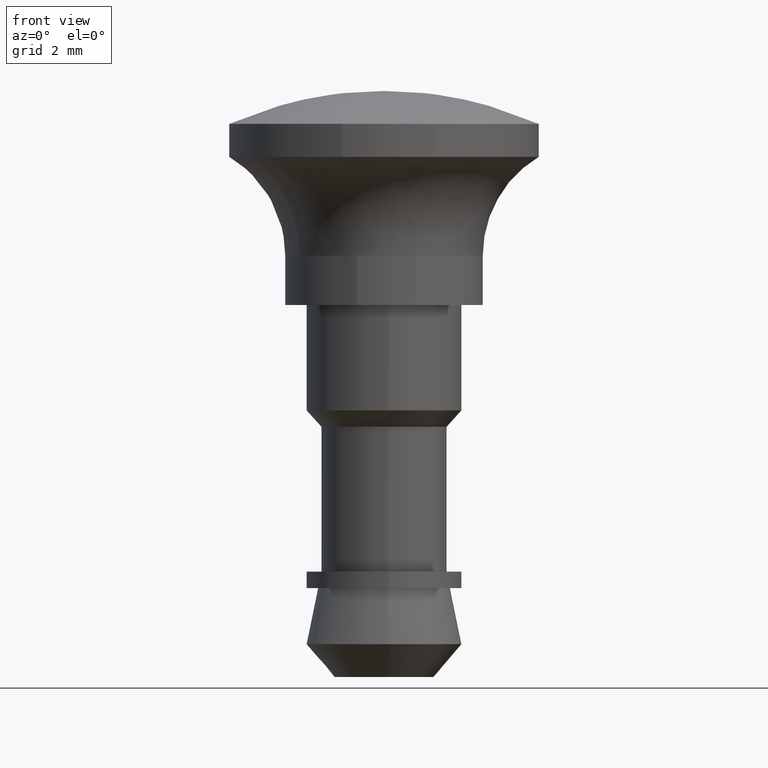
[diagram: clean part render]
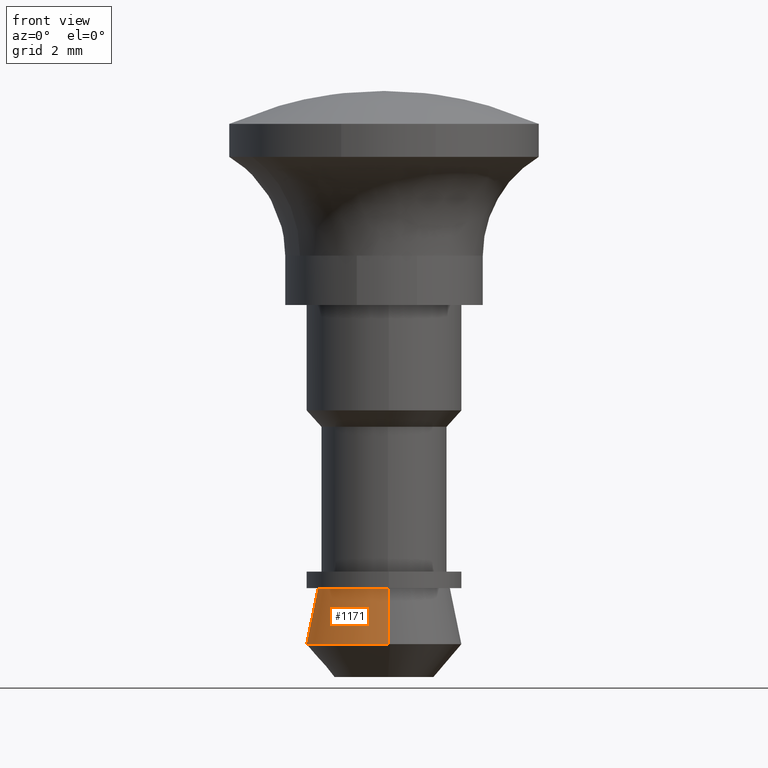
[diagram: same view with one face highlighted and labeled with its STEP entity id]
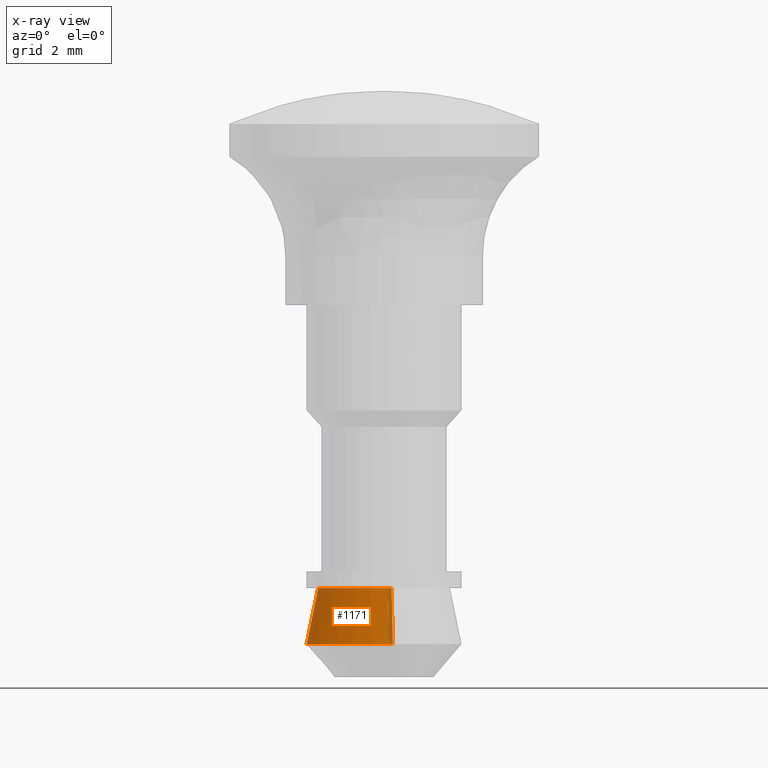
[diagram: x-ray of the same camera — body ghosted, the highlighted face saturated]
A machine part, front view. The second image highlights one B-rep face of the part: STEP entity #1171.
The next image is the same camera in x-ray: the body ghosted, the highlighted face saturated — about 5% of this face is hidden behind the body in this view.
In plain terms, the highlighted face is a freeform B-spline surface patch.
Its self-contained STEP definition (entity closure, byte-faithful):
#974=CARTESIAN_POINT('',(0.268136562160147,2.334652604572247,-10.300000000003150));
#975=VERTEX_POINT('',#974);
#991=CARTESIAN_POINT('',(0.228201329499123,1.986938386869895,-8.600000000002741));
#992=VERTEX_POINT('',#991);
#993=CARTESIAN_POINT('',(0.228201329499123,1.986938386869895,-8.600000000002741));
#994=CARTESIAN_POINT('',(0.268136562160147,2.334652604572247,-10.300000000003150));
#995=QUASI_UNIFORM_CURVE('',1,(#993,#994),.UNSPECIFIED.,.F.,.U.);
#996=EDGE_CURVE('',#992,#975,#995,.T.);
#1013=CARTESIAN_POINT('',(0.122097079078976,-1.996269596843437,-8.600000000001245));
#1014=VERTEX_POINT('',#1013);
#1028=CARTESIAN_POINT('',(0.143463870687620,-2.345616745525311,-10.299999792363820));
#1029=VERTEX_POINT('',#1028);
#1030=CARTESIAN_POINT('',(0.122097079078976,-1.996269596843437,-8.600000000001245));
#1031=CARTESIAN_POINT('',(0.143463870687620,-2.345616745525311,-10.299999792363820));
#1032=QUASI_UNIFORM_CURVE('',1,(#1030,#1031),.UNSPECIFIED.,.F.,.U.);
#1033=EDGE_CURVE('',#1014,#1029,#1032,.T.);
#1066=CARTESIAN_POINT('',(0.121562904348783,-1.987535917357521,-8.557499999999886));
#1067=CARTESIAN_POINT('',(-1.865973013008738,-2.109098821706304,-8.557499999999886));
#1068=CARTESIAN_POINT('',(-1.987535917357521,-0.121562904348783,-8.557499999999886));
#1069=CARTESIAN_POINT('',(-2.109098821706304,1.865973013008738,-8.557499999999886));
#1070=CARTESIAN_POINT('',(-0.121562904348783,1.987535917357521,-8.557499999999886));
#1071=CARTESIAN_POINT('',(0.053228538034748,1.998226619953581,-8.557499999999886));
#1072=CARTESIAN_POINT('',(0.227202948664240,1.978245531428845,-8.557499999999886));
#1073=CARTESIAN_POINT('',(0.144011596995867,-2.354568797764734,-10.343562500000010));
#1074=CARTESIAN_POINT('',(-2.210557200768867,-2.498580394760601,-10.343562500000006));
#1075=CARTESIAN_POINT('',(-2.354568797764734,-0.144011596995867,-10.343562500000010));
#1076=CARTESIAN_POINT('',(-2.498580394760601,2.210557200768867,-10.343562500000006));
#1077=CARTESIAN_POINT('',(-0.144011596995867,2.354568797764734,-10.343562500000010));
#1078=CARTESIAN_POINT('',(0.063058108139188,2.367233723484583,-10.343562500000006));
#1079=CARTESIAN_POINT('',(0.269159902476737,2.343562781402555,-10.343562500000006));
#1087=(BOUNDED_SURFACE()B_SPLINE_SURFACE(2,1,((#1066,#1073),(#1067,#1074),(#1068,#1075),(#1069,#1076),(#1070,#1077),(#1071,#1078),(#1072,#1079)),.UNSPECIFIED.,.F.,.F.,.U.)B_SPLINE_SURFACE_WITH_KNOTS((3,2,2,3),(2,2),(0.0,3.908467397857229,7.816934795714458,8.285950883457325),(0.0,1.0),.UNSPECIFIED.)GEOMETRIC_REPRESENTATION_ITEM()RATIONAL_B_SPLINE_SURFACE(((1.0,1.0),(0.707106781186548,0.707106781186548),(1.0,1.0),(0.707106781186548,0.707106781186548),(1.0,1.0),(0.964852813742386,0.964852813742386),(0.938140952186599,0.938140952186599)))REPRESENTATION_ITEM('')SURFACE());
#1088=CARTESIAN_POINT('',(-0.184378462736451,2.342755330924159,-10.300000511055130));
#1089=VERTEX_POINT('',#1088);
#1090=CARTESIAN_POINT('',(-0.184378462736451,2.342755330924160,-10.300000511055126));
#1091=CARTESIAN_POINT('',(-0.092331371575623,2.350000000000000,-10.300000000000002));
#1092=CARTESIAN_POINT('',(0.0,2.350000000000000,-10.300000000000001));
#1093=CARTESIAN_POINT('',(0.134507502329861,2.350000000000001,-10.299999999999999));
#1094=CARTESIAN_POINT('',(0.268136562160147,2.334652604572246,-10.300000000003145));
#1102=(BOUNDED_CURVE()B_SPLINE_CURVE(2,(#1090,#1091,#1092,#1093,#1094),.UNSPECIFIED.,.F.,.U.)B_SPLINE_CURVE_WITH_KNOTS((3,2,3),(0.236331355971056,0.250000000000000,0.269767755879541),.UNSPECIFIED.)CURVE()GEOMETRIC_REPRESENTATION_ITEM()RATIONAL_B_SPLINE_CURVE((0.969723471658631,0.983986187414189,1.0,0.976840633406890,0.957343736454880))REPRESENTATION_ITEM(''));
#1103=EDGE_CURVE('',#1089,#975,#1102,.T.);
#1104=ORIENTED_EDGE('',*,*,#1103,.F.);
#1105=CARTESIAN_POINT('',(-2.350000000000000,0.0,-10.300000000000001));
#1106=VERTEX_POINT('',#1105);
#1107=CARTESIAN_POINT('',(-2.350000000000000,0.0,-10.300000000000001));
#1108=CARTESIAN_POINT('',(-2.350000000000001,2.172318358820625,-10.300000000000001));
#1109=CARTESIAN_POINT('',(-0.184378462736451,2.342755330924160,-10.300000511055126));
#1117=(BOUNDED_CURVE()B_SPLINE_CURVE(2,(#1107,#1108,#1109),.UNSPECIFIED.,.F.,.U.)B_SPLINE_CURVE_WITH_KNOTS((3,3),(0.0,0.236331355971056),.UNSPECIFIED.)CURVE()GEOMETRIC_REPRESENTATION_ITEM()RATIONAL_B_SPLINE_CURVE((1.0,0.723120593772358,0.969723471658631))REPRESENTATION_ITEM(''));
#1118=EDGE_CURVE('',#1106,#1089,#1117,.T.);
#1119=ORIENTED_EDGE('',*,*,#1118,.F.);
#1120=CARTESIAN_POINT('',(0.143463870687620,-2.345616745525311,-10.299999792363820));
#1121=CARTESIAN_POINT('',(0.071798798596466,-2.350000000000000,-10.300000000000004));
#1122=CARTESIAN_POINT('',(0.0,-2.350000000000000,-10.300000000000001));
#1123=CARTESIAN_POINT('',(-2.350000000000001,-2.350000000000001,-10.300000000000001));
#1124=CARTESIAN_POINT('',(-2.350000000000000,0.0,-10.300000000000001));
#1132=(BOUNDED_CURVE()B_SPLINE_CURVE(2,(#1120,#1121,#1122,#1123,#1124),.UNSPECIFIED.,.F.,.U.)B_SPLINE_CURVE_WITH_KNOTS((3,2,3),(0.739332990873461,0.750000000000000,1.0),.UNSPECIFIED.)CURVE()GEOMETRIC_REPRESENTATION_ITEM()RATIONAL_B_SPLINE_CURVE((0.976072103035948,0.987502821447262,1.0,0.707106781186547,1.0))REPRESENTATION_ITEM(''));
#1133=EDGE_CURVE('',#1029,#1106,#1132,.T.);
#1134=ORIENTED_EDGE('',*,*,#1133,.F.);
#1135=ORIENTED_EDGE('',*,*,#1033,.F.);
#1136=CARTESIAN_POINT('',(-2.0,0.0,-8.599999999999890));
#1137=VERTEX_POINT('',#1136);
#1138=CARTESIAN_POINT('',(0.122097079078976,-1.996269596843437,-8.600000000001245));
#1139=CARTESIAN_POINT('',(0.061105526606450,-2.000000000000000,-8.599999999999890));
#1140=CARTESIAN_POINT('',(0.0,-2.0,-8.599999999999890));
#1141=CARTESIAN_POINT('',(-2.000000000000000,-2.000000000000000,-8.599999999999890));
#1142=CARTESIAN_POINT('',(-2.0,0.0,-8.599999999999890));
#1150=(BOUNDED_CURVE()B_SPLINE_CURVE(2,(#1138,#1139,#1140,#1141,#1142),.UNSPECIFIED.,.F.,.U.)B_SPLINE_CURVE_WITH_KNOTS((3,2,3),(0.739332962240370,0.750000000000000,1.0),.UNSPECIFIED.)CURVE()GEOMETRIC_REPRESENTATION_ITEM()RATIONAL_B_SPLINE_CURVE((0.976072041669776,0.987502787901509,1.0,0.707106781186548,1.0))REPRESENTATION_ITEM(''));
#1151=EDGE_CURVE('',#1014,#1137,#1150,.T.);
#1152=ORIENTED_EDGE('',*,*,#1151,.T.);
#1153=CARTESIAN_POINT('',(-2.0,0.0,-8.599999999999890));
#1154=CARTESIAN_POINT('',(-2.000000000000000,2.000000000000000,-8.599999999999890));
#1155=CARTESIAN_POINT('',(0.0,2.0,-8.599999999999890));
#1156=CARTESIAN_POINT('',(0.114474470069103,2.000000000000000,-8.599999999999890));
#1157=CARTESIAN_POINT('',(0.228201329499123,1.986938386869895,-8.600000000002741));
#1165=(BOUNDED_CURVE()B_SPLINE_CURVE(2,(#1153,#1154,#1155,#1156,#1157),.UNSPECIFIED.,.F.,.U.)B_SPLINE_CURVE_WITH_KNOTS((3,2,3),(0.0,0.250000000000000,0.269767755879733),.UNSPECIFIED.)CURVE()GEOMETRIC_REPRESENTATION_ITEM()RATIONAL_B_SPLINE_CURVE((1.0,0.707106781186548,1.0,0.976840633406666,0.957343736454502))REPRESENTATION_ITEM(''));
#1166=EDGE_CURVE('',#1137,#992,#1165,.T.);
#1167=ORIENTED_EDGE('',*,*,#1166,.T.);
#1168=ORIENTED_EDGE('',*,*,#996,.T.);
#1169=EDGE_LOOP('',(#1104,#1119,#1134,#1135,#1152,#1167,#1168));
#1170=FACE_OUTER_BOUND('',#1169,.T.);
#1171=ADVANCED_FACE('',(#1170),#1087,.T.);